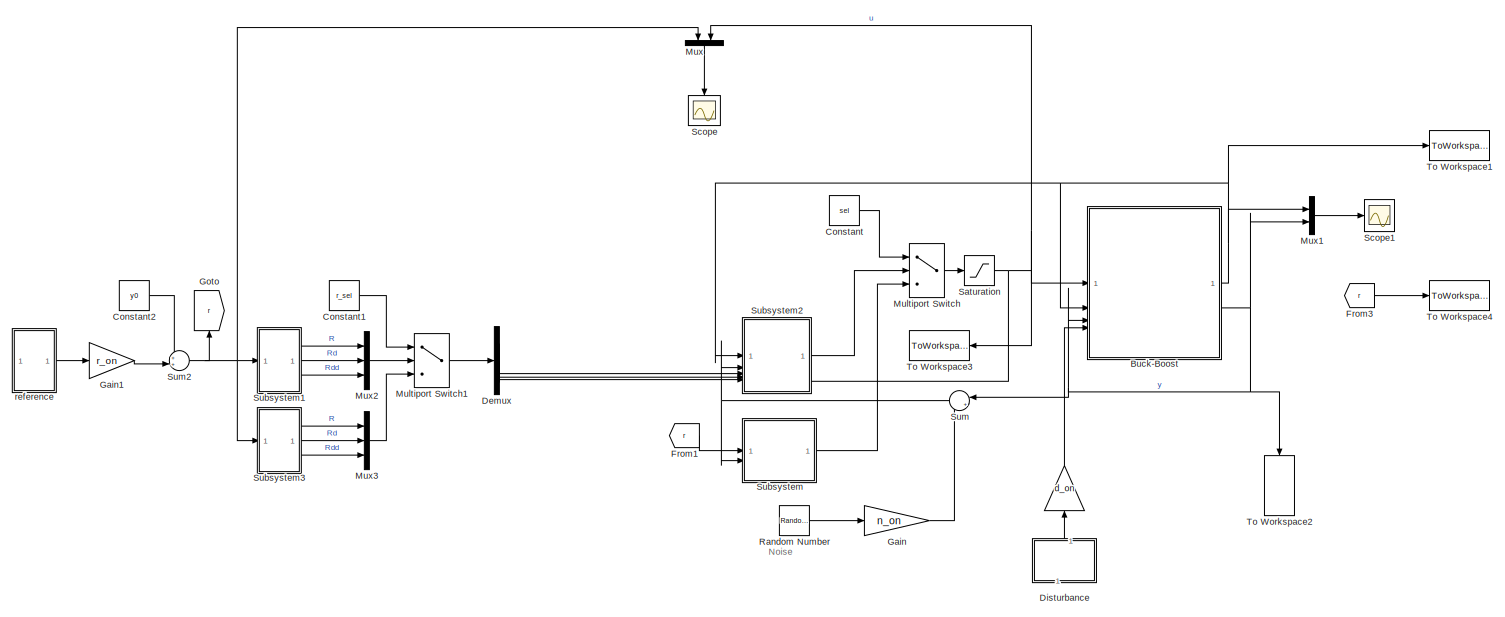
[diagram: root canvas - part 1/2, full width, middle band]
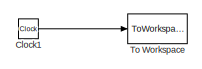
[diagram: root canvas - part 2/2, bottom left region]
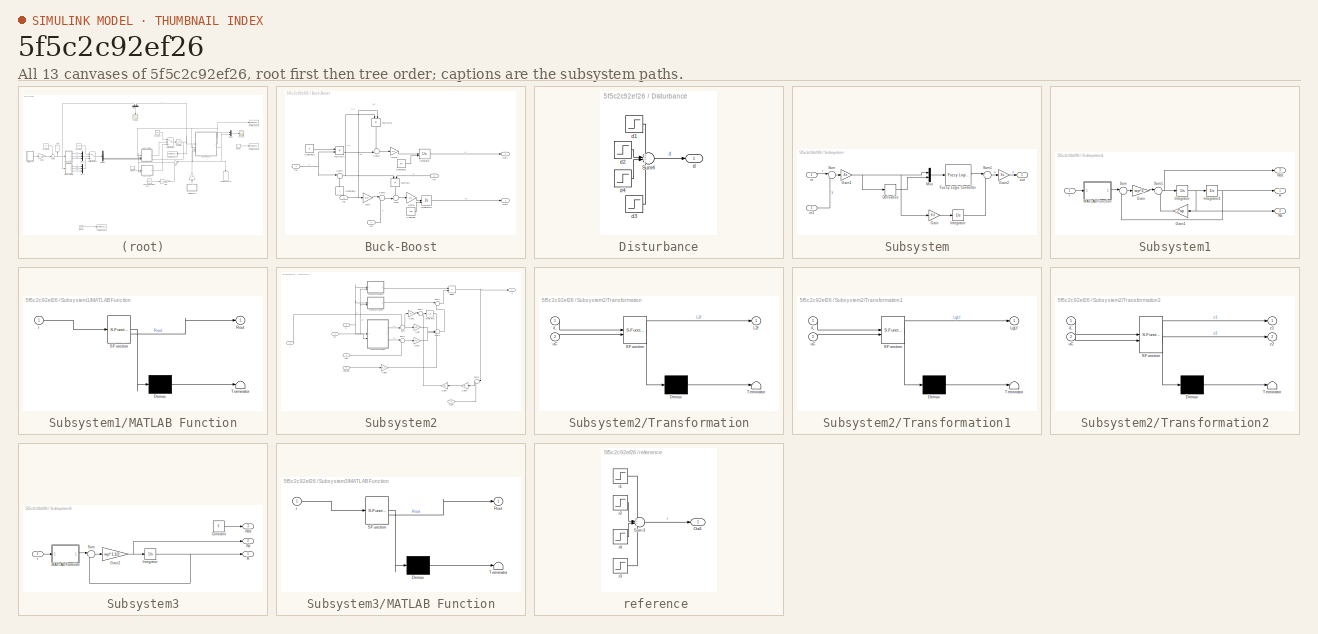
[diagram: thumbnail index - all 13 canvases of the model, root first then tree order]
MODEL slx_5f5c2c92ef26
KIND model
CONFIG AbsTol = auto
CONFIG EnableMultiTasking = off
CONFIG FixedStep = t_step
CONFIG MaxStep = auto
CONFIG MinStep = auto
CONFIG RelTol = 1e-3
CONFIG SampleTimeConstraint = Unconstrained
CONFIG SolverName = ode4
CONFIG StartTime = 0.0
CONFIG StopTime = t_end
BLOCK [Gain]  
  Gain = d_on
  NameLocation = right
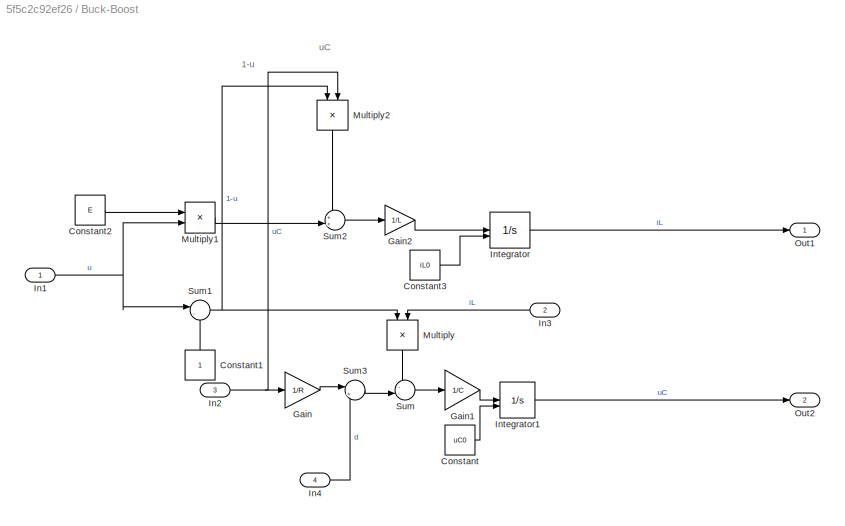
BLOCK [SubSystem] Buck-Boost
  ShowPortLabels = SignalName
BLOCK [Constant] Buck-Boost/Constant
  Value = uC0
BLOCK [Constant] Buck-Boost/Constant1
  NameLocation = right
BLOCK [Constant] Buck-Boost/Constant2
  Value = E
BLOCK [Constant] Buck-Boost/Constant3
  Value = iL0
BLOCK [Gain] Buck-Boost/Gain
  Gain = 1/R
BLOCK [Gain] Buck-Boost/Gain1
  Gain = 1/C
BLOCK [Gain] Buck-Boost/Gain2
  Gain = 1/L
BLOCK [Inport] Buck-Boost/In1
BLOCK [Inport] Buck-Boost/In2
  Port = 3
BLOCK [Inport] Buck-Boost/In3
  NameLocation = top
  Port = 2
BLOCK [Inport] Buck-Boost/In4
  Port = 4
BLOCK [Integrator] Buck-Boost/Integrator
  InitialConditionSource = external
BLOCK [Integrator] Buck-Boost/Integrator1
  InitialConditionSource = external
BLOCK [Product] Buck-Boost/Multiply
  NameLocation = left
BLOCK [Product] Buck-Boost/Multiply1
BLOCK [Product] Buck-Boost/Multiply2
  NameLocation = left
BLOCK [Outport] Buck-Boost/Out1
  VectorParamsAs1DForOutWhenUnconnected = off
BLOCK [Outport] Buck-Boost/Out2
  Port = 2
  VectorParamsAs1DForOutWhenUnconnected = off
BLOCK [Sum] Buck-Boost/Sum
  Inputs = --|
BLOCK [Sum] Buck-Boost/Sum1
  Inputs = |-+
BLOCK [Sum] Buck-Boost/Sum2
  Inputs = ++|
BLOCK [Sum] Buck-Boost/Sum3
  Inputs = |++
BLOCK [Clock] Clock1
BLOCK [Constant] Constant
  Value = sel
BLOCK [Constant] Constant1
  Value = r_sel
BLOCK [Constant] Constant2
  Value = y0
BLOCK [Demux] Demux
  Outputs = 3
BLOCK [SubSystem] Disturbance
  NameLocation = right
BLOCK [Sum] Disturbance/Sum4
  Inputs = ++++
BLOCK [Outport] Disturbance/d
  VectorParamsAs1DForOutWhenUnconnected = off
BLOCK [Step] Disturbance/d1 
  After = d_val
  SampleTime = 0
  Time = d_time
BLOCK [Step] Disturbance/d2 
  After = -d_val
  SampleTime = 0
  Time = d_time + d_delta
BLOCK [Step] Disturbance/d3 
  After = -d_val
  SampleTime = 0
  Time = d_time + d_delta*2
BLOCK [Step] Disturbance/d4 
  After = d_val
  SampleTime = 0
  Time = d_time + d_delta*3
BLOCK [From] From1
  GotoTag = r
BLOCK [From] From3
  GotoTag = r
BLOCK [Gain] Gain
  Gain = n_on
BLOCK [Gain] Gain1
  Gain = r_on
BLOCK [Goto] Goto
  GotoTag = r
  NameLocation = right
BLOCK [MultiPortSwitch] Multiport Switch
  InputSameDT = off
  Inputs = 2
  SaturateOnIntegerOverflow = off
BLOCK [MultiPortSwitch] Multiport Switch1
  InputSameDT = off
  Inputs = 2
  SaturateOnIntegerOverflow = off
BLOCK [Mux] Mux
  DisplayOption = bar
  Inputs = 2
  NameLocation = left
BLOCK [Mux] Mux1
  DisplayOption = bar
  Inputs = 2
BLOCK [Mux] Mux2
  DisplayOption = bar
  Inputs = 3
BLOCK [Mux] Mux3
  DisplayOption = bar
  Inputs = 3
BLOCK [RandomNumber] Random Number
  SampleTime = t_step
  Variance = sigma_n
BLOCK [Saturate] Saturation
  LowerLimit = 0
  UpperLimit = 1
BLOCK [Scope] Scope
  Floating = off
  NameLocation = left
  NumInputPorts = 1
  ScopeSpecificationString = Simulink.scopes.TimeScopeBlockCfg('CurrentConfiguration', extmgr.ConfigurationSet(extmgr.Configuration('Core','General UI',true),extmgr.Configuration('Core','Source UI',true),extmgr.Configuration('Sources','WiredSimulink',true),extmgr.Configuration('Visuals','Time Domain',true,'SerializedDisplays',{struct('MinYLimReal','-1.62024','MaxYLimReal','3.62495','YLabelReal','','MinYLimMag','0.00000','MaxY...<+1446ch>
BLOCK [Scope] Scope1
  Floating = off
  NumInputPorts = 1
  ScopeSpecificationString = Simulink.scopes.TimeScopeBlockCfg('CurrentConfiguration', extmgr.ConfigurationSet(extmgr.Configuration('Core','General UI',true),extmgr.Configuration('Core','Source UI',true),extmgr.Configuration('Sources','WiredSimulink',true,'DataLoggingVariableName','ScopeData1'),extmgr.Configuration('Visuals','Time Domain',true,'SerializedDisplays',{struct('MinYLimReal','-73.00323','MaxYLimReal','95.34004','YL...<+1809ch>
BLOCK [SubSystem] Subsystem
  ShowPortLabels = SignalName
BLOCK [Derivative] Subsystem/Derivative
  CoefficientInTFapproximation = 1/200
BLOCK [Reference] Subsystem/Fuzzy Logic Controller  REF=fuzblock/Fuzzy Logic   (lib defined in mdl_858b3b3e7478)
Controller
  SourceBlock = fuzblock/Fuzzy Logic \nController
  SourceType = Fuzzy Inference System
BLOCK [Gain] Subsystem/Gain
  Gain = Kif
BLOCK [Gain] Subsystem/Gain1
  Gain = -Kn
BLOCK [Gain] Subsystem/Gain2
  Gain = Ku
BLOCK [Integrator] Subsystem/Integrator
BLOCK [Mux] Subsystem/Mux
  DisplayOption = bar
  Inputs = 2
BLOCK [Sum] Subsystem/Sum
  Inputs = |+-
BLOCK [Sum] Subsystem/Sum1
  Inputs = |++
BLOCK [Inport] Subsystem/in
BLOCK [Inport] Subsystem/in1
  Port = 2
BLOCK [Outport] Subsystem/out
BLOCK [SubSystem] Subsystem1
BLOCK [Gain] Subsystem1/Gain
  Gain = wp^2
BLOCK [Gain] Subsystem1/Gain1
  Gain = 2*wp
  NameLocation = top
BLOCK [Integrator] Subsystem1/Integrator
BLOCK [Integrator] Subsystem1/Integrator1
BLOCK [SubSystem] Subsystem1/MATLAB Function
  ErrorFcn = Stateflow.Translate.translate
  LibrarySourceBlock = simulink/User-Defined\nFunctions/MATLAB Function
  PermitHierarchicalResolution = ExplicitOnly
  SFBlockType = MATLAB Function
  TreatAsAtomicUnit = on
BLOCK [Demux] Subsystem1/MATLAB Function/ Demux 
  Outputs = 1
BLOCK [S-Function] Subsystem1/MATLAB Function/ SFunction 
  EnableBusSupport = on
  FunctionName = sf_sfun
  PortCounts = [1 2]
  SFcnIsStateOwnerBlock = off
  SFunctionDeploymentMode = off
  Tag = Stateflow S-Function 4
BLOCK [Terminator] Subsystem1/MATLAB Function/ Terminator 
BLOCK [Outport] Subsystem1/MATLAB Function/Rout
BLOCK [Inport] Subsystem1/MATLAB Function/r
BLOCK [Outport] Subsystem1/R
BLOCK [Outport] Subsystem1/Rd
  Port = 2
BLOCK [Outport] Subsystem1/Rdd
  Port = 3
BLOCK [Sum] Subsystem1/Sum
  Inputs = |+-
BLOCK [Sum] Subsystem1/Sum1
  Inputs = |+-
BLOCK [Inport] Subsystem1/r
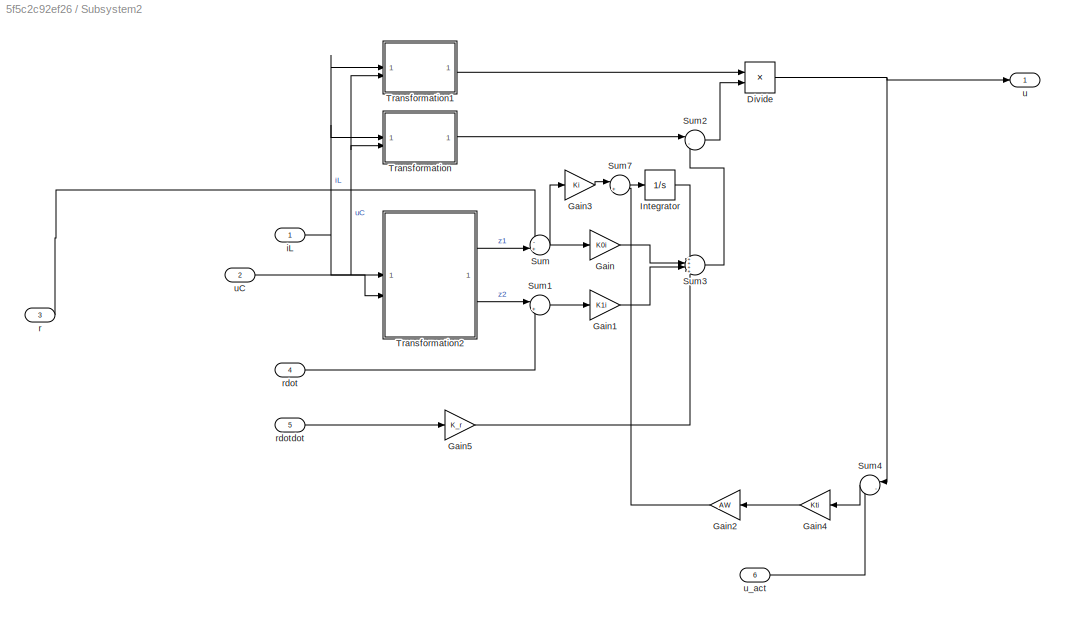
BLOCK [SubSystem] Subsystem2
  PortSchema = {"entries":[{"content":{"sides":[{"content":{"connectorIds":["In1","In2","In3","In4","In5"]},"type":"ConnectorPlacement.EquallySpacedRectSide","uuid":"a5ffe97d-c71e-4de0-ba63-bc76db2e4a28"},{"content":{"connectorIds":["Out1","In6"],"side":"RIGHT"},"type":"ConnectorPlacement.EquallySpacedRectSide","uuid":"4d46e151-a221-479a-a7c8-fb4e18a057b4"},{"content":{"connectorIds":[],"side":"TOP"},"type":"Con...<+414ch>
BLOCK [Product] Subsystem2/Divide
  Inputs = /*
BLOCK [Gain] Subsystem2/Gain
  Gain = K0i
BLOCK [Gain] Subsystem2/Gain1
  Gain = K1i
BLOCK [Gain] Subsystem2/Gain2
  Gain = AW
  NameLocation = top
BLOCK [Gain] Subsystem2/Gain3
  Gain = Ki
BLOCK [Gain] Subsystem2/Gain4
  Gain = Kti
  NameLocation = top
BLOCK [Gain] Subsystem2/Gain5
  Gain = K_r
BLOCK [Integrator] Subsystem2/Integrator
  LowerSaturationLimit = -30
  UpperSaturationLimit = 30
BLOCK [Sum] Subsystem2/Sum
  Inputs = -+|
BLOCK [Sum] Subsystem2/Sum1
  Inputs = |+-
BLOCK [Sum] Subsystem2/Sum2
  Inputs = |--
BLOCK [Sum] Subsystem2/Sum3
  Inputs = ++++
BLOCK [Sum] Subsystem2/Sum4
  Inputs = |-+
  NameLocation = top
BLOCK [Sum] Subsystem2/Sum7
  Inputs = |+-
BLOCK [SubSystem] Subsystem2/Transformation
  ErrorFcn = Stateflow.Translate.translate
  LibrarySourceBlock = simulink/User-Defined\nFunctions/MATLAB Function
  PermitHierarchicalResolution = ExplicitOnly
  SFBlockType = MATLAB Function
  TreatAsAtomicUnit = on
BLOCK [Demux] Subsystem2/Transformation/ Demux 
  Outputs = 1
BLOCK [S-Function] Subsystem2/Transformation/ SFunction 
  EnableBusSupport = on
  FunctionName = sf_sfun
  PortCounts = [2 2]
  SFcnIsStateOwnerBlock = off
  SFunctionDeploymentMode = off
  Tag = Stateflow S-Function 5
BLOCK [Terminator] Subsystem2/Transformation/ Terminator 
BLOCK [Outport] Subsystem2/Transformation/L2f
BLOCK [Inport] Subsystem2/Transformation/iL
BLOCK [Inport] Subsystem2/Transformation/uC
  Port = 2
BLOCK [SubSystem] Subsystem2/Transformation1
  ErrorFcn = Stateflow.Translate.translate
  LibrarySourceBlock = simulink/User-Defined\nFunctions/MATLAB Function
  PermitHierarchicalResolution = ExplicitOnly
  SFBlockType = MATLAB Function
  TreatAsAtomicUnit = on
BLOCK [Demux] Subsystem2/Transformation1/ Demux 
  Outputs = 1
BLOCK [S-Function] Subsystem2/Transformation1/ SFunction 
  EnableBusSupport = on
  FunctionName = sf_sfun
  PortCounts = [2 2]
  SFcnIsStateOwnerBlock = off
  SFunctionDeploymentMode = off
  Tag = Stateflow S-Function 6
BLOCK [Terminator] Subsystem2/Transformation1/ Terminator 
BLOCK [Outport] Subsystem2/Transformation1/LgLf
BLOCK [Inport] Subsystem2/Transformation1/iL
BLOCK [Inport] Subsystem2/Transformation1/uC
  Port = 2
BLOCK [SubSystem] Subsystem2/Transformation2
  ErrorFcn = Stateflow.Translate.translate
  LibrarySourceBlock = simulink/User-Defined\nFunctions/MATLAB Function
  PermitHierarchicalResolution = ExplicitOnly
  SFBlockType = MATLAB Function
  TreatAsAtomicUnit = on
BLOCK [Demux] Subsystem2/Transformation2/ Demux 
  Outputs = 1
BLOCK [S-Function] Subsystem2/Transformation2/ SFunction 
  EnableBusSupport = on
  FunctionName = sf_sfun
  PortCounts = [2 3]
  SFcnIsStateOwnerBlock = off
  SFunctionDeploymentMode = off
  Tag = Stateflow S-Function 7
BLOCK [Terminator] Subsystem2/Transformation2/ Terminator 
BLOCK [Inport] Subsystem2/Transformation2/iL
BLOCK [Inport] Subsystem2/Transformation2/uC
  Port = 2
BLOCK [Outport] Subsystem2/Transformation2/z1
BLOCK [Outport] Subsystem2/Transformation2/z2
  Port = 2
BLOCK [Inport] Subsystem2/iL
BLOCK [Inport] Subsystem2/r
  Port = 3
BLOCK [Inport] Subsystem2/rdot
  Port = 4
BLOCK [Inport] Subsystem2/rdotdot
  Port = 5
BLOCK [Outport] Subsystem2/u
BLOCK [Inport] Subsystem2/uC
  Port = 2
BLOCK [Inport] Subsystem2/u_act
  Port = 6
BLOCK [SubSystem] Subsystem3
BLOCK [Constant] Subsystem3/Constant
  Value = 0
BLOCK [Gain] Subsystem3/Gain2
  Gain = wp*1.1/2
BLOCK [Integrator] Subsystem3/Integrator
BLOCK [SubSystem] Subsystem3/MATLAB Function
  ErrorFcn = Stateflow.Translate.translate
  LibrarySourceBlock = simulink/User-Defined\nFunctions/MATLAB Function
  PermitHierarchicalResolution = ExplicitOnly
  SFBlockType = MATLAB Function
  TreatAsAtomicUnit = on
BLOCK [Demux] Subsystem3/MATLAB Function/ Demux 
  Outputs = 1
BLOCK [S-Function] Subsystem3/MATLAB Function/ SFunction 
  EnableBusSupport = on
  FunctionName = sf_sfun
  PortCounts = [1 2]
  SFcnIsStateOwnerBlock = off
  SFunctionDeploymentMode = off
  Tag = Stateflow S-Function 8
BLOCK [Terminator] Subsystem3/MATLAB Function/ Terminator 
BLOCK [Outport] Subsystem3/MATLAB Function/Rout
BLOCK [Inport] Subsystem3/MATLAB Function/r
BLOCK [Outport] Subsystem3/R
BLOCK [Outport] Subsystem3/Rd
  Port = 2
BLOCK [Outport] Subsystem3/Rdd
  Port = 3
BLOCK [Sum] Subsystem3/Sum
  Inputs = |+-
BLOCK [Inport] Subsystem3/r
BLOCK [Sum] Sum
  Inputs = |++
  NameLocation = top
BLOCK [Sum] Sum2
  Inputs = ++|
BLOCK [ToWorkspace] To Workspace
  FixptAsFi = on
  MaxDataPoints = inf
  SampleTime = -1
  VariableName = t
BLOCK [ToWorkspace] To Workspace1
  FixptAsFi = on
  MaxDataPoints = inf
  SampleTime = -1
  VariableName = iL_out
BLOCK [ToWorkspace] To Workspace2
  FixptAsFi = on
  MaxDataPoints = inf
  NameLocation = left
  SampleTime = -1
  VariableName = y_out
BLOCK [ToWorkspace] To Workspace3
  FixptAsFi = on
  MaxDataPoints = inf
  NameLocation = top
  SampleTime = -1
  VariableName = u_out
BLOCK [ToWorkspace] To Workspace4
  FixptAsFi = on
  MaxDataPoints = inf
  SampleTime = -1
  VariableName = total_ref
BLOCK [SubSystem] reference 
  ShowPortLabels = SignalName
BLOCK [Outport] reference /Out1
  VectorParamsAs1DForOutWhenUnconnected = off
BLOCK [Sum] reference /Sum3
  Inputs = ++++
BLOCK [Step] reference /r1 
  After = r_val
  SampleTime = 0
  Time = r_time
BLOCK [Step] reference /r2 
  After = -r_val
  SampleTime = 0
  Time = r_time + r_delta
BLOCK [Step] reference /r3 
  After = -r_val
  SampleTime = 0
  Time = r_time + 2*r_delta
BLOCK [Step] reference /r4 
  After = r_val
  SampleTime = 0
  Time = r_time + 3*r_delta
ANNOTATION (root): Noise
ANNOTATION Buck-Boost: 1-u
ANNOTATION Buck-Boost: uC
LINE  :1 -> Buck-Boost:4
LINE Buck-Boost/Constant1:1 -> Buck-Boost/Sum1:2
LINE Buck-Boost/Constant2:1 -> Buck-Boost/Multiply1:1
LINE Buck-Boost/Constant3:1 -> Buck-Boost/Integrator:2
LINE Buck-Boost/Constant:1 -> Buck-Boost/Integrator1:2
LINE Buck-Boost/Gain1:1 -> Buck-Boost/Integrator1:1
LINE Buck-Boost/Gain2:1 -> Buck-Boost/Integrator:1
LINE Buck-Boost/Gain:1 -> Buck-Boost/Sum3:1
NET Buck-Boost/In1:1 -> Buck-Boost/Multiply1:2, Buck-Boost/Sum1:1
NET Buck-Boost/In2:1 -> Buck-Boost/Gain:1, Buck-Boost/Multiply2:2
LINE Buck-Boost/In3:1 -> Buck-Boost/Multiply:2
LINE Buck-Boost/In4:1 -> Buck-Boost/Sum3:2
LINE Buck-Boost/Integrator1:1 -> Buck-Boost/Out2:1
LINE Buck-Boost/Integrator:1 -> Buck-Boost/Out1:1
LINE Buck-Boost/Multiply1:1 -> Buck-Boost/Sum2:2
LINE Buck-Boost/Multiply2:1 -> Buck-Boost/Sum2:1
LINE Buck-Boost/Multiply:1 -> Buck-Boost/Sum:1
NET Buck-Boost/Sum1:1 -> Buck-Boost/Multiply2:1, Buck-Boost/Multiply:1
LINE Buck-Boost/Sum2:1 -> Buck-Boost/Gain2:1
LINE Buck-Boost/Sum3:1 -> Buck-Boost/Sum:2
LINE Buck-Boost/Sum:1 -> Buck-Boost/Gain1:1
NET Buck-Boost:1 -> Buck-Boost:2, Mux1:1, Subsystem2:1, To Workspace1:1
NET Buck-Boost:2 -> Buck-Boost:3, Mux1:2, Sum:1, To Workspace2:1
LINE Clock1:1 -> To Workspace:1
LINE Constant1:1 -> Multiport Switch1:1
LINE Constant2:1 -> Sum2:1
LINE Constant:1 -> Multiport Switch:1
LINE Demux:1 -> Subsystem2:3
LINE Demux:2 -> Subsystem2:4
LINE Demux:3 -> Subsystem2:5
LINE Disturbance/Sum4:1 -> Disturbance/d:1
LINE Disturbance/d1 :1 -> Disturbance/Sum4:1
LINE Disturbance/d2 :1 -> Disturbance/Sum4:2
LINE Disturbance/d3 :1 -> Disturbance/Sum4:4
LINE Disturbance/d4 :1 -> Disturbance/Sum4:3
LINE Disturbance:1 ->  :1
LINE From1:1 -> Subsystem:1
LINE From3:1 -> To Workspace4:1
LINE Gain1:1 -> Sum2:2
LINE Gain:1 -> Sum:2
LINE Multiport Switch1:1 -> Demux:1
LINE Multiport Switch:1 -> Saturation:1
LINE Mux1:1 -> Scope1:1
LINE Mux2:1 -> Multiport Switch1:2
LINE Mux3:1 -> Multiport Switch1:3
LINE Mux:1 -> Scope:1
LINE Random Number:1 -> Gain:1
NET Saturation:1 -> Buck-Boost:1, Mux:2, Subsystem2:6, To Workspace3:1
LINE Subsystem/Derivative:1 -> Subsystem/Mux:2
LINE Subsystem/Fuzzy Logic Controller:1 -> Subsystem/Sum1:1
NET Subsystem/Gain1:1 -> Subsystem/Derivative:1, Subsystem/Gain:1, Subsystem/Mux:1
LINE Subsystem/Gain2:1 -> Subsystem/out:1
LINE Subsystem/Gain:1 -> Subsystem/Integrator:1
LINE Subsystem/Integrator:1 -> Subsystem/Sum1:2
LINE Subsystem/Mux:1 -> Subsystem/Fuzzy Logic Controller:1
LINE Subsystem/Sum1:1 -> Subsystem/Gain2:1
LINE Subsystem/Sum:1 -> Subsystem/Gain1:1
LINE Subsystem/in1:1 -> Subsystem/Sum:2
LINE Subsystem/in:1 -> Subsystem/Sum:1
LINE Subsystem1/Gain1:1 -> Subsystem1/Sum1:2
LINE Subsystem1/Gain:1 -> Subsystem1/Sum1:1
NET Subsystem1/Integrator1:1 -> Subsystem1/R:1, Subsystem1/Sum:2
NET Subsystem1/Integrator:1 -> Subsystem1/Gain1:1, Subsystem1/Integrator1:1, Subsystem1/Rd:1
LINE Subsystem1/MATLAB Function:1 -> Subsystem1/Sum:1
NET Subsystem1/Sum1:1 -> Subsystem1/Integrator:1, Subsystem1/Rdd:1
LINE Subsystem1/Sum:1 -> Subsystem1/Gain:1
LINE Subsystem1/r:1 -> Subsystem1/MATLAB Function:1
LINE Subsystem1:1 -> Mux2:1
LINE Subsystem1:2 -> Mux2:2
LINE Subsystem1:3 -> Mux2:3
NET Subsystem2/Divide:1 -> Subsystem2/Sum4:1, Subsystem2/u:1
LINE Subsystem2/Gain1:1 -> Subsystem2/Sum3:3
LINE Subsystem2/Gain2:1 -> Subsystem2/Sum7:2
LINE Subsystem2/Gain3:1 -> Subsystem2/Sum7:1
LINE Subsystem2/Gain4:1 -> Subsystem2/Gain2:1
LINE Subsystem2/Gain5:1 -> Subsystem2/Sum3:4
LINE Subsystem2/Gain:1 -> Subsystem2/Sum3:2
LINE Subsystem2/Integrator:1 -> Subsystem2/Sum3:1
LINE Subsystem2/Sum1:1 -> Subsystem2/Gain1:1
LINE Subsystem2/Sum2:1 -> Subsystem2/Divide:2
LINE Subsystem2/Sum3:1 -> Subsystem2/Sum2:2
LINE Subsystem2/Sum4:1 -> Subsystem2/Gain4:1
LINE Subsystem2/Sum7:1 -> Subsystem2/Integrator:1
NET Subsystem2/Sum:1 -> Subsystem2/Gain3:1, Subsystem2/Gain:1
LINE Subsystem2/Transformation1:1 -> Subsystem2/Divide:1
LINE Subsystem2/Transformation2:1 -> Subsystem2/Sum:2
LINE Subsystem2/Transformation2:2 -> Subsystem2/Sum1:1
LINE Subsystem2/Transformation:1 -> Subsystem2/Sum2:1
NET Subsystem2/iL:1 -> Subsystem2/Transformation1:1, Subsystem2/Transformation2:1, Subsystem2/Transformation:1
LINE Subsystem2/r:1 -> Subsystem2/Sum:1
LINE Subsystem2/rdot:1 -> Subsystem2/Sum1:2
LINE Subsystem2/rdotdot:1 -> Subsystem2/Gain5:1
NET Subsystem2/uC:1 -> Subsystem2/Transformation1:2, Subsystem2/Transformation2:2, Subsystem2/Transformation:2
LINE Subsystem2/u_act:1 -> Subsystem2/Sum4:2
LINE Subsystem2:1 -> Multiport Switch:2
LINE Subsystem3/Constant:1 -> Subsystem3/Rdd:1
NET Subsystem3/Gain2:1 -> Subsystem3/Integrator:1, Subsystem3/Rd:1
NET Subsystem3/Integrator:1 -> Subsystem3/R:1, Subsystem3/Sum:2
LINE Subsystem3/MATLAB Function:1 -> Subsystem3/Sum:1
LINE Subsystem3/Sum:1 -> Subsystem3/Gain2:1
LINE Subsystem3/r:1 -> Subsystem3/MATLAB Function:1
LINE Subsystem3:1 -> Mux3:1
LINE Subsystem3:2 -> Mux3:2
LINE Subsystem3:3 -> Mux3:3
LINE Subsystem:1 -> Multiport Switch:3
NET Sum2:1 -> Goto:1, Mux:1, Subsystem1:1, Subsystem3:1
NET Sum:1 -> Subsystem2:2, Subsystem:2
LINE reference /Sum3:1 -> reference /Out1:1
LINE reference /r1 :1 -> reference /Sum3:1
LINE reference /r2 :1 -> reference /Sum3:2
LINE reference /r3 :1 -> reference /Sum3:4
LINE reference /r4 :1 -> reference /Sum3:3
LINE reference :1 -> Gain1:1
note: NET lines group one-source signal fan-out (src -> all destinations, sorted); 1:1 wires keep LINE
CHART Subsystem1/MATLAB Function states=1 transitions=1
  STATE_LABEL 'eML_blk_kernel()'
  STATE_LABEL 'SCRIPT:\nfunction Rout = convert(r)\n\nE = 12; %V\nR = 52; %Omh\nL = 0.01591; %H\nC = 0.000470; %F \n\n\nVc = -22.5;\nuCe = Vc;\nue = -(uCe)/(E-uCe);\niLe = -uCe/R/(1-ue);\n\nuC = r;\nu = -(uC)/(E-uC);\niL = -uC/R/(1-u);\n\n\ngamma = L*1/2*iLe^2 + C*1/2*(uCe - E)^2;\ngamma = -gamma;\n\nRout = L*1/2*iL^2 + C*1/2*(uC - E)^2 + gamma;\n'
CHART Subsystem2/Transformation states=1 transitions=1
  STATE_LABEL 'eML_blk_kernel()'
  STATE_LABEL 'SCRIPT:\nfunction L2f = L2f(iL, uC)\nE = 12; %V\nR = 52; %Omh\nL = 0.01591; %H\nC = 0.000470; %F \n\nL2f = E/L*uC - 1/(R*C)*(iL + uC/R)*(-2*uC + E);\n'
CHART Subsystem2/Transformation1 states=1 transitions=1
  STATE_LABEL 'eML_blk_kernel()'
  STATE_LABEL 'SCRIPT:\nfunction LgLf = LgLf(iL, uC)\nE = 12; %V\nR = 52; %Omh\nL = 0.01591; %H\nC = 0.000470; %F \n\nLgLf = E/L*(-uC + E) + 1/(C*R)*iL*(-2*uC + E);\n'
CHART Subsystem2/Transformation2 states=1 transitions=1
  STATE_LABEL 'eML_blk_kernel()'
  STATE_LABEL 'SCRIPT:\nfunction [z1, z2] = T(iL, uC)\nE = 12; %V\nR = 52; %Omh\nL = 0.01591; %H\nC = 0.000470; %F \n\nVc = -22.5;\nuCe = Vc;\nue = -(uCe)/(E-uCe);\niLe = -uCe/R/(1-ue);\n\ngamma = L*1/2*iLe^2 + C*1/2*(uCe - E)^2;\ngamma = -gamma;\n\n\n% z1 = h(x)\nz1 = L*1/2*iL^2 + C*1/2*(uC - E)^2 + gamma;\n% z2 = Lf h(x)\nz2 = E*(iL + uC/R) - uC^2/R;\n'
CHART Subsystem3/MATLAB Function states=1 transitions=1
  STATE_LABEL 'eML_blk_kernel()'
  STATE_LABEL 'SCRIPT:\nfunction Rout = convert(r)\n\nE = 12; %V\nR = 52; %Omh\nL = 0.01591; %H\nC = 0.000470; %F \n\n\nVc = -22.5;\nuCe = Vc;\nue = -(uCe)/(E-uCe);\niLe = -uCe/R/(1-ue);\n\nuC = r;\nu = -(uC)/(E-uC);\niL = -uC/R/(1-u);\n\n\ngamma = L*1/2*iLe^2 + C*1/2*(uCe - E)^2;\ngamma = -gamma;\n\nRout = L*1/2*iL^2 + C*1/2*(uC - E)^2 + gamma;\n'
CHART  states=0 transitions=0
CHART  states=0 transitions=0
CHART  states=0 transitions=0
CHART  states=0 transitions=0
CHART  states=0 transitions=0
